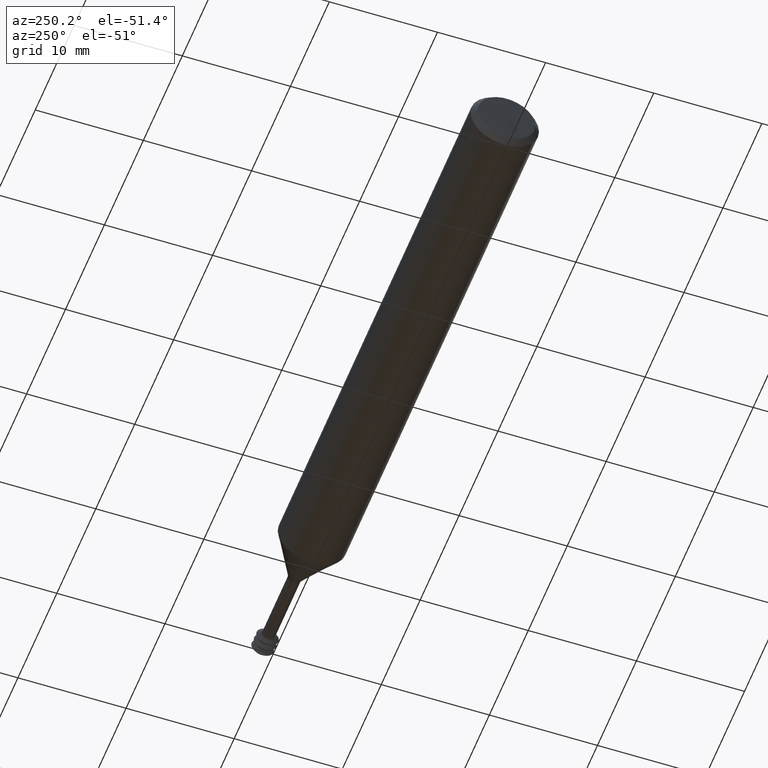
[diagram: clean part render]
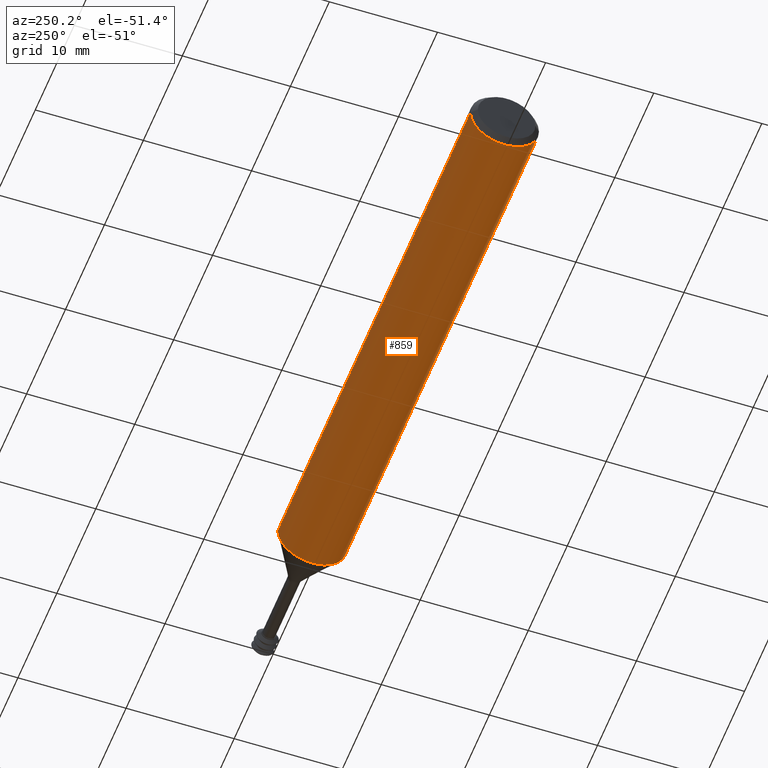
[diagram: same view with one face highlighted and labeled with its STEP entity id]
A machine part, auxiliary view. The second image highlights one B-rep face of the part: STEP entity #859.
In plain terms, the highlighted cylindrical surface (edge-blend (fillet) strip) has radius 3.1712 mm, axis along (-1, 0, -0).
Its self-contained STEP definition (entity closure, byte-faithful):
#17 = DIRECTION ( 'NONE',  ( 0.000000000000000000, -1.000000000000000000, 0.000000000000000000 ) ) ;
#67 = VECTOR ( 'NONE', #684, 39.37007874015748143 ) ;
#112 = ORIENTED_EDGE ( 'NONE', *, *, #637, .F. ) ;
#120 = EDGE_LOOP ( 'NONE', ( #112, #129, #710, #1048 ) ) ;
#129 = ORIENTED_EDGE ( 'NONE', *, *, #373, .T. ) ;
#236 = DIRECTION ( 'NONE',  ( -1.000000000000000000, 3.312725351696573770E-18, -0.000000000000000000 ) ) ;
#268 = DIRECTION ( 'NONE',  ( 0.000000000000000000, -1.000000000000000000, 0.000000000000000000 ) ) ;
#282 = CARTESIAN_POINT ( 'NONE',  ( 2.406000000000000139, 0.1248500000000000026, 1.528971528735470422E-17 ) ) ;
#291 = CYLINDRICAL_SURFACE ( 'NONE', #349, 0.1248500000000000026 ) ;
#335 = EDGE_CURVE ( 'NONE', #958, #597, #868, .T. ) ;
#349 = AXIS2_PLACEMENT_3D ( 'NONE', #923, #827, #929 ) ;
#353 = FACE_OUTER_BOUND ( 'NONE', #120, .T. ) ;
#355 = AXIS2_PLACEMENT_3D ( 'NONE', #749, #758, #17 ) ;
#373 = EDGE_CURVE ( 'NONE', #976, #405, #695, .T. ) ;
#405 = VERTEX_POINT ( 'NONE', #903 ) ;
#445 = CARTESIAN_POINT ( 'NONE',  ( 0.02000000000000005940, 1.170044238599739941E-17, 0.000000000000000000 ) ) ;
#564 = AXIS2_PLACEMENT_3D ( 'NONE', #445, #577, #268 ) ;
#577 = DIRECTION ( 'NONE',  ( -1.000000000000000000, 3.312725351696573770E-18, -0.000000000000000000 ) ) ;
#597 = VERTEX_POINT ( 'NONE', #855 ) ;
#637 = EDGE_CURVE ( 'NONE', #976, #958, #678, .T. ) ;
#644 = CARTESIAN_POINT ( 'NONE',  ( 1.968757920842117537, 0.1248500000000000026, 1.528971528735470422E-17 ) ) ;
#678 = LINE ( 'NONE', #282, #67 ) ;
#684 = DIRECTION ( 'NONE',  ( -1.000000000000000000, 3.312725351696573770E-18, -0.000000000000000000 ) ) ;
#695 = CIRCLE ( 'NONE', #355, 0.1248500000000000026 ) ;
#710 = ORIENTED_EDGE ( 'NONE', *, *, #983, .T. ) ;
#715 = LINE ( 'NONE', #968, #900 ) ;
#749 = CARTESIAN_POINT ( 'NONE',  ( 1.968757920842117537, 5.244742617304212452E-18, 0.000000000000000000 ) ) ;
#758 = DIRECTION ( 'NONE',  ( -1.000000000000000000, 3.312725351696573770E-18, -0.000000000000000000 ) ) ;
#827 = DIRECTION ( 'NONE',  ( -1.000000000000000000, 3.312725351696573770E-18, -0.000000000000000000 ) ) ;
#855 = CARTESIAN_POINT ( 'NONE',  ( 0.02000000000000005940, -0.1248499999999999610, 1.528971528735470422E-17 ) ) ;
#859 = ADVANCED_FACE ( 'NONE', ( #353 ), #291, .T. ) ;
#868 = CIRCLE ( 'NONE', #564, 0.1248500000000000026 ) ;
#894 = CARTESIAN_POINT ( 'NONE',  ( 0.02000000000000005940, 0.1248500000000000026, 0.000000000000000000 ) ) ;
#900 = VECTOR ( 'NONE', #236, 39.37007874015748143 ) ;
#903 = CARTESIAN_POINT ( 'NONE',  ( 1.968757920842117537, -0.1248500000000000026, 0.000000000000000000 ) ) ;
#923 = CARTESIAN_POINT ( 'NONE',  ( 2.406000000000000139, 3.796279696849373925E-18, 0.000000000000000000 ) ) ;
#929 = DIRECTION ( 'NONE',  ( 0.000000000000000000, -1.000000000000000000, 0.000000000000000000 ) ) ;
#958 = VERTEX_POINT ( 'NONE', #894 ) ;
#968 = CARTESIAN_POINT ( 'NONE',  ( 2.406000000000000139, -0.1248500000000000026, 0.000000000000000000 ) ) ;
#976 = VERTEX_POINT ( 'NONE', #644 ) ;
#983 = EDGE_CURVE ( 'NONE', #405, #597, #715, .T. ) ;
#1048 = ORIENTED_EDGE ( 'NONE', *, *, #335, .F. ) ;